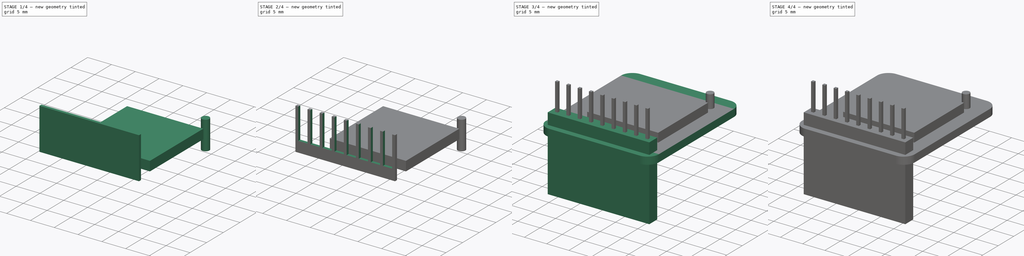
[diagram: build sequence overview — one tinted view per stage of 4, left to right]
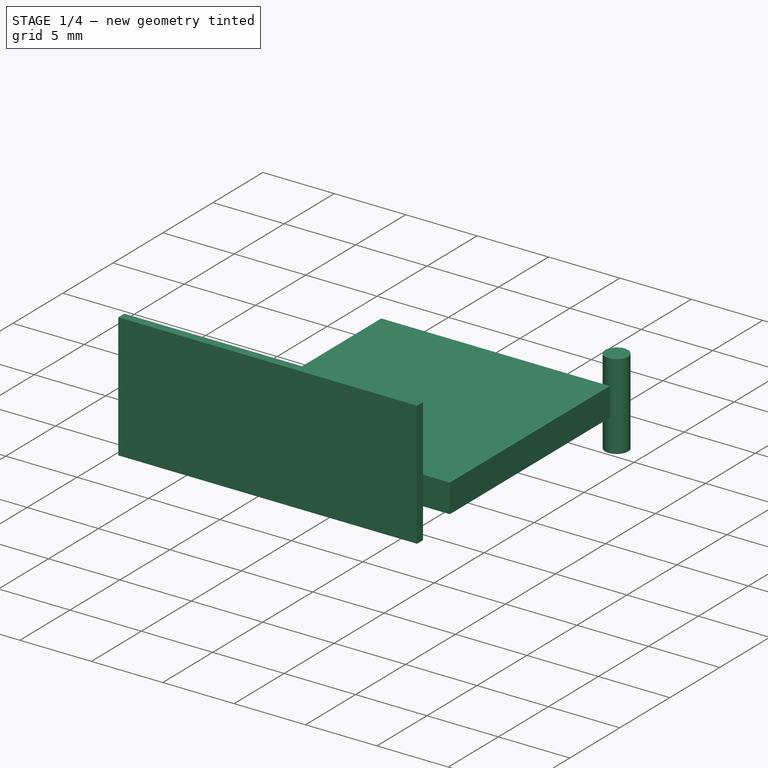
[diagram: stage 1 of 4 — iso view after this stage's code; geometry added in this stage tinted green]
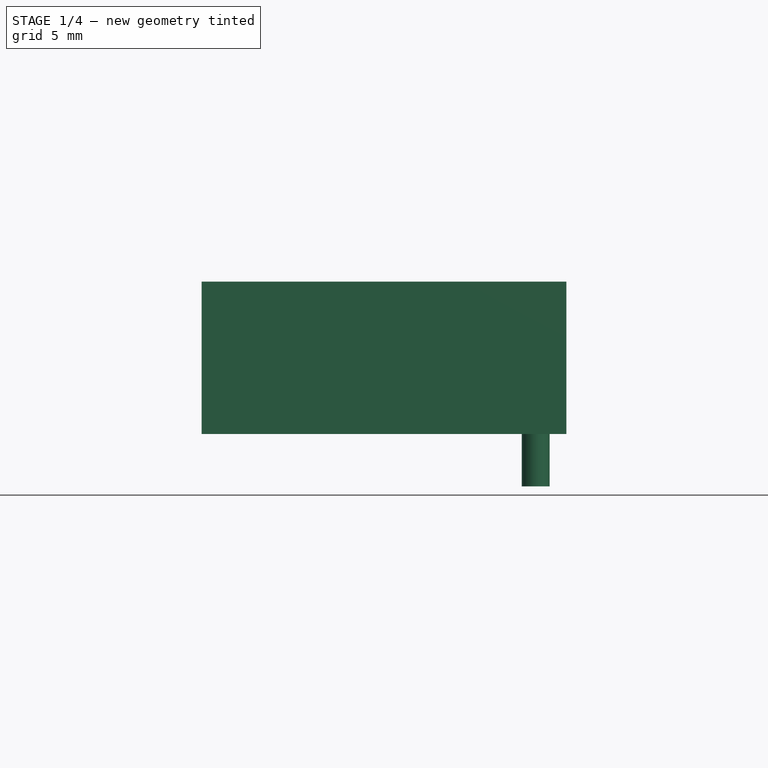
[diagram: stage 1 of 4 — front view after this stage's code; geometry added in this stage tinted green]
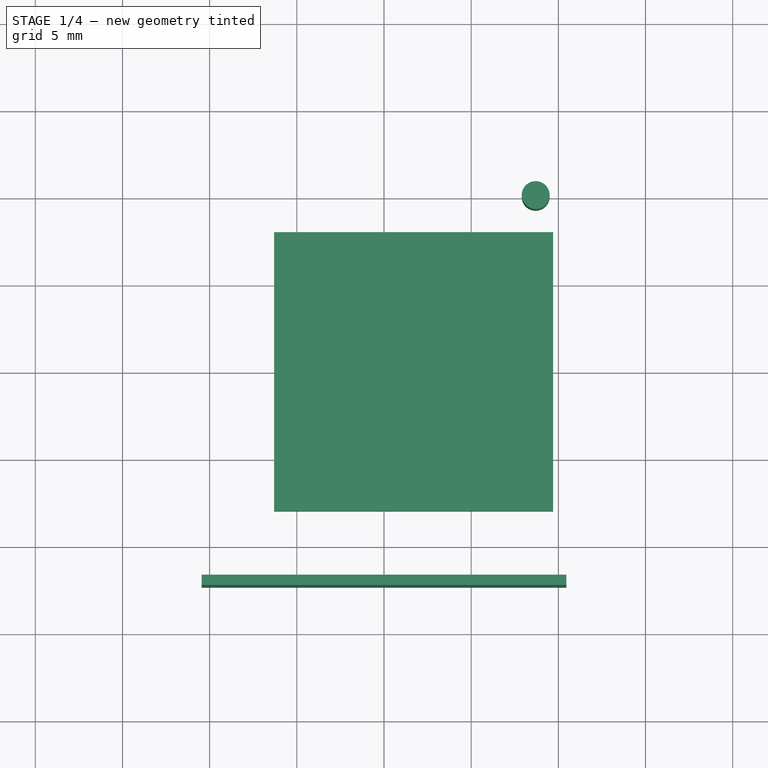
[diagram: stage 1 of 4 — top view after this stage's code; geometry added in this stage tinted green]
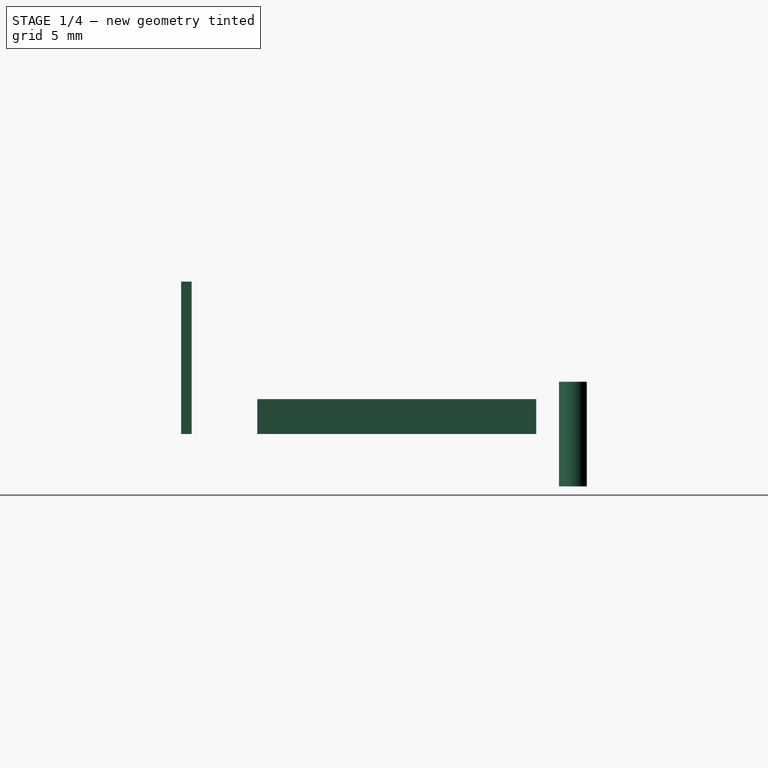
[diagram: stage 1 of 4 — right view after this stage's code; geometry added in this stage tinted green]
FCSTD DOCUMENT  (FreeCAD 0.19R24276 (Git))
Label: Adafruit_RFTrans
License: All rights reserved
LicenseURL: http://en.wikipedia.org/wiki/All_rights_reserved
objects: Sketcher::SketchObject×8, PartDesign::Pad×6, PartDesign::Body×6, PartDesign::LinearPattern×4, PartDesign::Pocket×2, Spreadsheet::Sheet×1, App::Part×1
note: 34 computed .brp shape members not serialized (recipe doc carries the construction recipe); baked Part::Feature solids carry a one-line shape summary decoded from their .brp

FEATURE [PartDesign::Body] Body012  label="PinBlock"
  Group = -> [Sketch014,Pad007]
  Origin = -> Origin016
  Placement = pos=(0,0,-4.2) rot=(0,0,1;0rad)
  Tip = -> Pad007
FEATURE [Sketcher::SketchObject] Sketch016
  FullyConstrained = true
  MapMode = 5
  Support = -> [XY_Plane017]
  expr: Constraints[12] = <<params>>.pin_square_block_dim * (<<params>>.light_num_pins - 1) + <<params>>.pin_width
  expr: Constraints[11] = <<params>>.pin_width
  expr: Constraints[10] = <<params>>.light_width / 2 - <<params>>.light_hole_edge_offset
  sketch-geometry (5):
    g0: LineSegment StartX=-10.46 StartY=-11.765 StartZ=0 EndX=10.46 EndY=-11.765 EndZ=0
    g1: LineSegment StartX=10.46 StartY=-11.765 StartZ=0 EndX=10.46 EndY=-12.365 EndZ=0
    g2: LineSegment StartX=10.46 StartY=-12.365 StartZ=0 EndX=-10.46 EndY=-12.365 EndZ=0
    g3: LineSegment StartX=-10.46 StartY=-12.365 StartZ=0 EndX=-10.46 EndY=-11.765 EndZ=0
    g4: GeomPoint X=0 Y=-12.065 Z=0
  constraints (13):
    c: Coincident(g0,g1)
    c: Coincident(g1,g2)
    c: Coincident(g2,g3)
    c: Coincident(g3,g0)
    c: Horizontal(g0)
    c: Horizontal(g2)
    c: Vertical(g1)
    c: Vertical(g3)
    c: PointOnObject(g4,g-2)
    c: Symmetric(g2,g0,g4)
    c: DistanceY(g4,g-1) = 12.065
    c: DistanceY(g1,g1) = 0.6
    c: DistanceX(g2,g2) = 20.92
FEATURE [PartDesign::Pad] Pad008  label="Pad_PinPLate"
  Direction = (1,1,1)
  Length = 8.74
  Length2 = 100
  Profile = -> Sketch016
  Type = 0
  expr: Length = <<params>>.pin_square_block_dim + <<params>>.pin_leng
FEATURE [PartDesign::Body] Body013  label="Pins"
  Group = -> [Sketch016,Pad008,Sketch017,Pocket005,LinearPattern,LinearPattern006]
  Origin = -> Origin017
  Placement = pos=(0,-24.1,-1.6) rot=(1,0,0;3.14159rad)
  Tip = -> LinearPattern006
FEATURE [Sketcher::SketchObject] Sketch
  FullyConstrained = true
  MapMode = 5
  Support = -> [XY_Plane]
  expr: Constraints[12] = <<params>>.light_leng / 2 - 3mm
  sketch-geometry (5):
    g0: LineSegment StartX=-6.3 StartY=8 StartZ=0 EndX=9.7 EndY=8 EndZ=0
    g1: LineSegment StartX=9.7 StartY=8 StartZ=0 EndX=9.7 EndY=-8 EndZ=0
    g2: LineSegment StartX=9.7 StartY=-8 StartZ=0 EndX=-6.3 EndY=-8 EndZ=0
    g3: LineSegment StartX=-6.3 StartY=-8 StartZ=0 EndX=-6.3 EndY=8 EndZ=0
    g4: GeomPoint X=1.7 Y=0 Z=0
  constraints (13):
    c: Coincident(g0,g1)
    c: Coincident(g1,g2)
    c: Coincident(g2,g3)
    c: Coincident(g3,g0)
    c: Horizontal(g0)
    c: Horizontal(g2)
    c: Vertical(g1)
    c: Vertical(g3)
    c: Distance(g0) = 16
    c: Distance(g1) = 16
    c: PointOnObject(g4,g-1)
    c: Symmetric(g2,g0,g4)
    c: DistanceX(g-1,g1) = 9.7
FEATURE [PartDesign::Pad] Pad
  Direction = (1,1,1)
  Length = 2
  Length2 = 100
  Profile = -> Sketch
  Type = 0
FEATURE [PartDesign::Body] Body  label="RFBoard"
  Group = -> [Sketch,Pad]
  Origin = -> Origin
  Tip = -> Pad
FEATURE [Sketcher::SketchObject] Sketch019
  FullyConstrained = true
  MapMode = 5
  Support = -> [XY_Plane019]
  expr: Constraints[2] = <<params>>.light_width / 2 - 4.5mm
  expr: Constraints[1] = <<params>>.light_leng / 2 - 4mm
  sketch-geometry (1):
    g0: Circle CenterX=8.7 CenterY=10.105 CenterZ=0 NormalX=0 NormalY=0 NormalZ=1 AngleXU=0 Radius=0.8
  constraints (3):
    c: Diameter(g0) = 1.6
    c: DistanceX(g-1,g0) = 8.7
    c: DistanceY(g-1,g0) = 10.105
FEATURE [PartDesign::Pad] Pad010
  Direction = (1,1,1)
  Length = 6
  Length2 = 100
  Midplane = true
  Profile = -> Sketch019
  Type = 0
FEATURE [PartDesign::Body] Body015  label="Antenna"
  Group = -> [Sketch019,Pad010]
  Origin = -> Origin019
  Tip = -> Pad010
FEATURE [App::Part] Part002  label="AdaF_I2CLight_Part"
  Group = -> [Body002,Body012,Body013,Body014,Body,Body015]
  Origin = -> Origin002
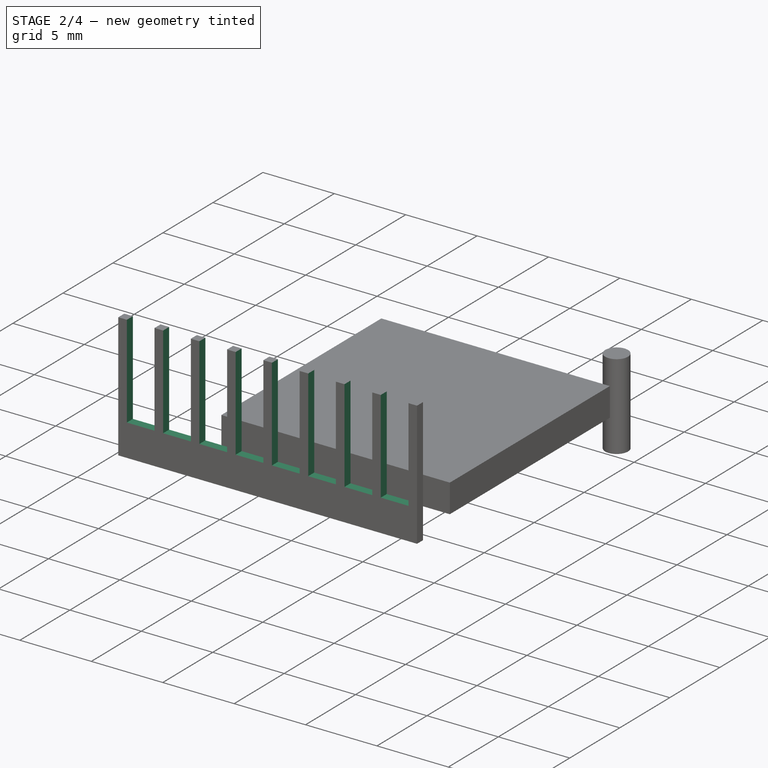
[diagram: stage 2 of 4 — iso view after this stage's code; geometry added in this stage tinted green]
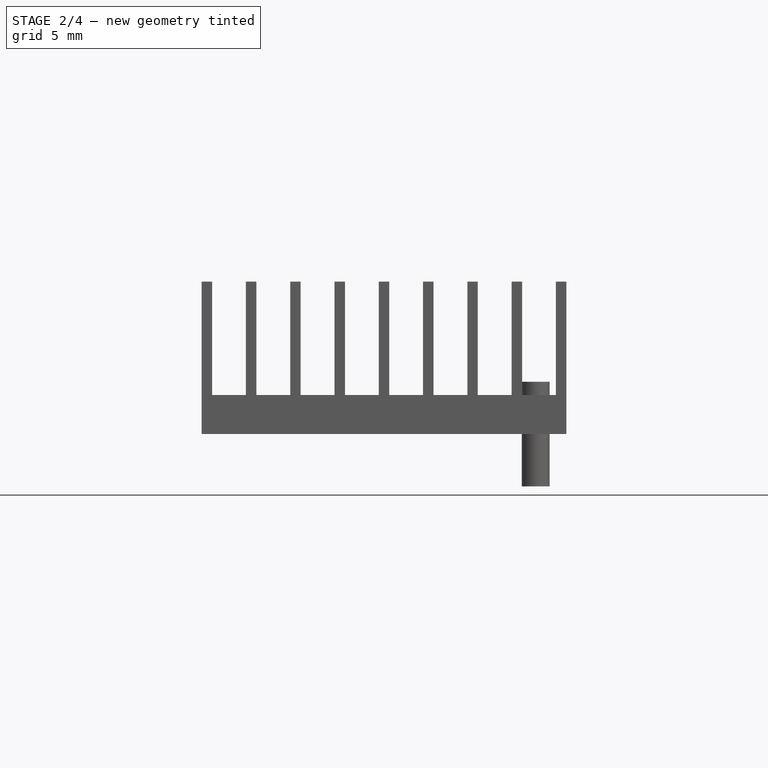
[diagram: stage 2 of 4 — front view after this stage's code; geometry added in this stage tinted green]
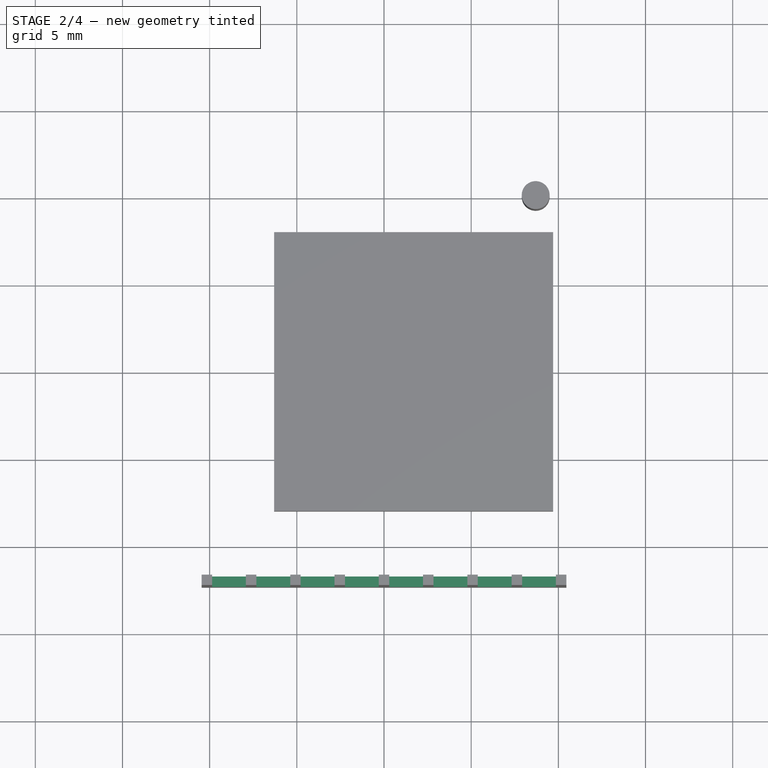
[diagram: stage 2 of 4 — top view after this stage's code; geometry added in this stage tinted green]
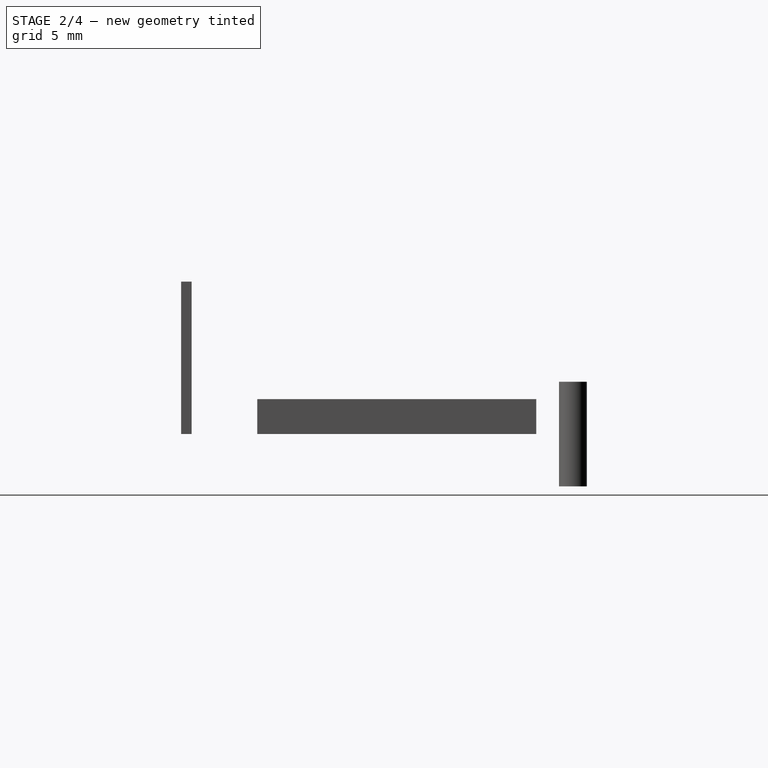
[diagram: stage 2 of 4 — right view after this stage's code; geometry added in this stage tinted green]
FEATURE [Sketcher::SketchObject] Sketch017
  FullyConstrained = true
  MapMode = 5
  Placement = pos=(0,0,0) rot=(1,0,0;1.5708rad)
  Support = -> [XZ_Plane017]
  expr: Constraints[57] = <<params>>.pin_leng * 2
  expr: Constraints[58] = <<params>>.pin_square_block_dim - <<params>>.std_tol
  expr: Constraints[59] = <<params>>.pin_width
  expr: Constraints[61] = <<params>>.pin_spacing
  sketch-geometry (24):
    g0: LineSegment StartX=-2.24 StartY=14.64 StartZ=0 EndX=-0.3 EndY=14.64 EndZ=0
    g1: LineSegment StartX=-0.3 StartY=14.64 StartZ=0 EndX=-0.3 EndY=2.24 EndZ=0
    g2: LineSegment StartX=-0.3 StartY=2.24 StartZ=0 EndX=-2.24 EndY=2.24 EndZ=0
    g3: LineSegment StartX=-2.24 StartY=2.24 StartZ=0 EndX=-2.24 EndY=14.64 EndZ=0
    g4: LineSegment StartX=0.3 StartY=14.64 StartZ=0 EndX=2.24 EndY=14.64 EndZ=0
    g5: LineSegment StartX=2.24 StartY=14.64 StartZ=0 EndX=2.24 EndY=2.24 EndZ=0
    g6: LineSegment StartX=2.24 StartY=2.24 StartZ=0 EndX=0.3 EndY=2.24 EndZ=0
    g7: LineSegment StartX=0.3 StartY=2.24 StartZ=0 EndX=0.3 EndY=14.64 EndZ=0
    g8: LineSegment StartX=2.84 StartY=14.64 StartZ=0 EndX=4.78 EndY=14.64 EndZ=0
    g9: LineSegment StartX=4.78 StartY=14.64 StartZ=0 EndX=4.78 EndY=2.24 EndZ=0
    g10: LineSegment StartX=4.78 StartY=2.24 StartZ=0 EndX=2.84 EndY=2.24 EndZ=0
    g11: LineSegment StartX=2.84 StartY=2.24 StartZ=0 EndX=2.84 EndY=14.64 EndZ=0
    g12: LineSegment StartX=-4.78 StartY=14.64 StartZ=0 EndX=-2.84 EndY=14.64 EndZ=0
    g13: LineSegment StartX=-2.84 StartY=14.64 StartZ=0 EndX=-2.84 EndY=2.24 EndZ=0
    g14: LineSegment StartX=-2.84 StartY=2.24 StartZ=0 EndX=-4.78 EndY=2.24 EndZ=0
    g15: LineSegment StartX=-4.78 StartY=2.24 StartZ=0 EndX=-4.78 EndY=14.64 EndZ=0
    g16: LineSegment StartX=-2.84 StartY=14.64 StartZ=0 EndX=-2.24 EndY=14.64 EndZ=0
    g17: LineSegment StartX=-0.3 StartY=14.64 StartZ=0 EndX=0.3 EndY=14.64 EndZ=0
    g18: LineSegment StartX=2.24 StartY=14.64 StartZ=0 EndX=2.84 EndY=14.64 EndZ=0
    g19: LineSegment StartX=-2.84 StartY=2.24 StartZ=0 EndX=-2.24 EndY=2.24 EndZ=0
    g20: LineSegment StartX=-0.3 StartY=2.24 StartZ=0 EndX=0.3 EndY=2.24 EndZ=0
    g21: LineSegment StartX=2.24 StartY=2.24 StartZ=0 EndX=2.84 EndY=2.24 EndZ=0
    g22: GeomPoint X=0 Y=2.24 Z=0
    g23: GeomPoint X=2.54 Y=2.24 Z=0
  constraints (62):
    c: Coincident(g0,g1)
    c: Coincident(g1,g2)
    c: Coincident(g2,g3)
    c: Coincident(g3,g0)
    c: Horizontal(g0)
    c: Horizontal(g2)
    c: Vertical(g1)
    c: Vertical(g3)
    c: Coincident(g4,g5)
    c: Coincident(g5,g6)
    c: Coincident(g6,g7)
    c: Coincident(g7,g4)
    c: Horizontal(g4)
    c: Horizontal(g6)
    c: Vertical(g5)
    c: Vertical(g7)
    c: Coincident(g8,g9)
    c: Coincident(g9,g10)
    c: Coincident(g10,g11)
    c: Coincident(g11,g8)
    c: Horizontal(g8)
    c: Horizontal(g10)
    c: Vertical(g9)
    c: Vertical(g11)
    c: Coincident(g12,g13)
    c: Coincident(g13,g14)
    c: Coincident(g14,g15)
    c: Coincident(g15,g12)
    c: Horizontal(g12)
    c: Horizontal(g14)
    c: Vertical(g13)
    c: Vertical(g15)
    c: Equal(g12,g0)
    c: Equal(g0,g4)
    c: Equal(g4,g8)
    c: Coincident(g16,g12)
    c: Coincident(g16,g0)
    c: Coincident(g17,g0)
    c: Coincident(g17,g4)
    c: Horizontal(g17)
    c: Coincident(g18,g4)
    c: Coincident(g18,g8)
    c: Horizontal(g18)
    c: Coincident(g19,g13)
    c: Coincident(g19,g2)
    c: Coincident(g20,g1)
    c: Coincident(g20,g6)
    c: Coincident(g21,g5)
    c: Coincident(g21,g10)
    c: Equal(g16,g17)
    c: Equal(g17,g18)
    c: Horizontal(g16)
    c: Horizontal(g19)
    c: Horizontal(g20)
    c: Horizontal(g21)
    c: PointOnObject(g22,g-2)
    c: Symmetric(g1,g6,g22)
    c: DistanceY(g9,g9) = 12.4
    c: DistanceY(g-1,g22) = 2.24
    c: DistanceX(g17,g17) = 0.6
    c: Symmetric(g5,g10,g23)
    c: DistanceX(g22,g23) = 2.54
FEATURE [PartDesign::Pocket] Pocket005  label="Pocket_PinCut"
  BaseFeature = -> Pad008
  Length = 5
  Length2 = 100
  Midplane = true
  Profile = -> Sketch017
  Type = 1
FEATURE [PartDesign::Body] Body014  label="JumperHeader"
  Group = -> [Sketch018,Pad009]
  Origin = -> Origin018
  Placement = pos=(0,0,-4.2) rot=(0,0,1;0rad)
  Tip = -> Pad009
FEATURE [PartDesign::LinearPattern] LinearPattern
  BaseFeature = -> Pocket005
  Direction = -> X_Axis017
  Length = 10.16
  Occurrences = 2
  Originals = -> [Pocket005]
  expr: Length = <<params>>.pin_square_block_dim * (round(<<params>>.light_num_pins / 2) - 1)
FEATURE [PartDesign::LinearPattern] LinearPattern006
  BaseFeature = -> LinearPattern
  Direction = -> X_Axis017
  Length = 10.16
  Occurrences = 2
  Originals = -> [Pocket005]
  Reversed = true
  expr: Length = <<params>>.pin_square_block_dim * (round(<<params>>.light_num_pins / 2) - 1)
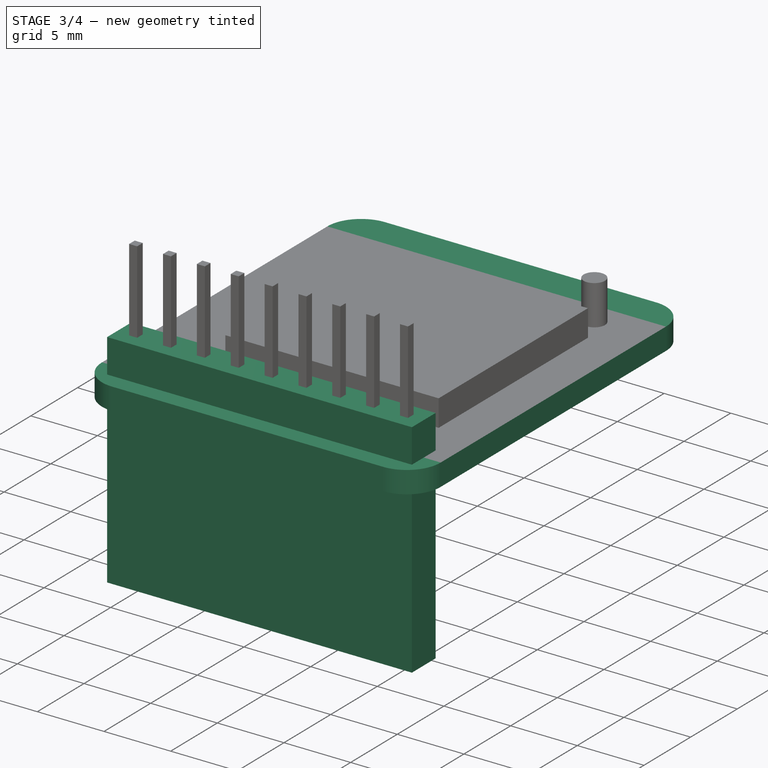
[diagram: stage 3 of 4 — iso view after this stage's code; geometry added in this stage tinted green]
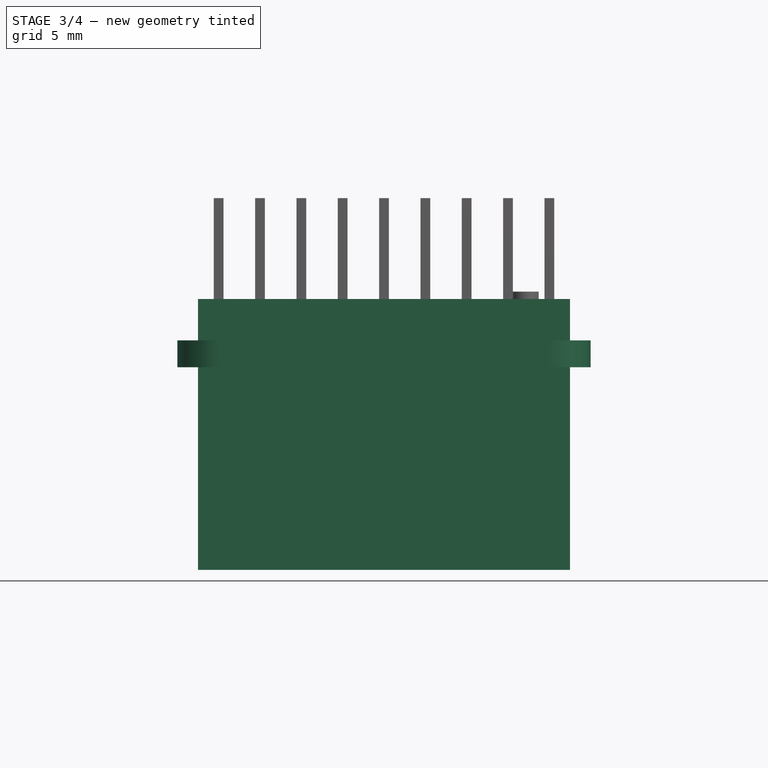
[diagram: stage 3 of 4 — front view after this stage's code; geometry added in this stage tinted green]
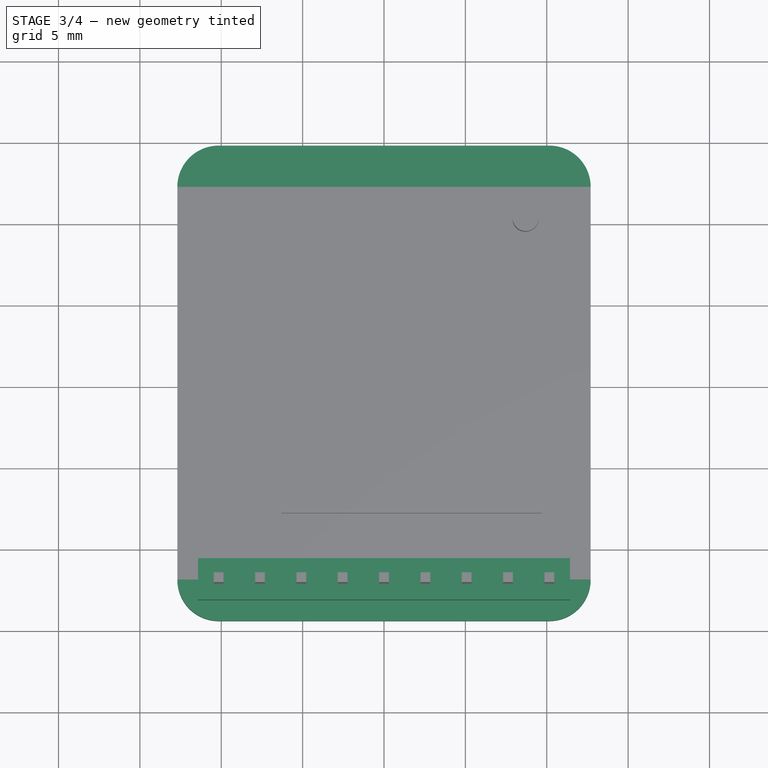
[diagram: stage 3 of 4 — top view after this stage's code; geometry added in this stage tinted green]
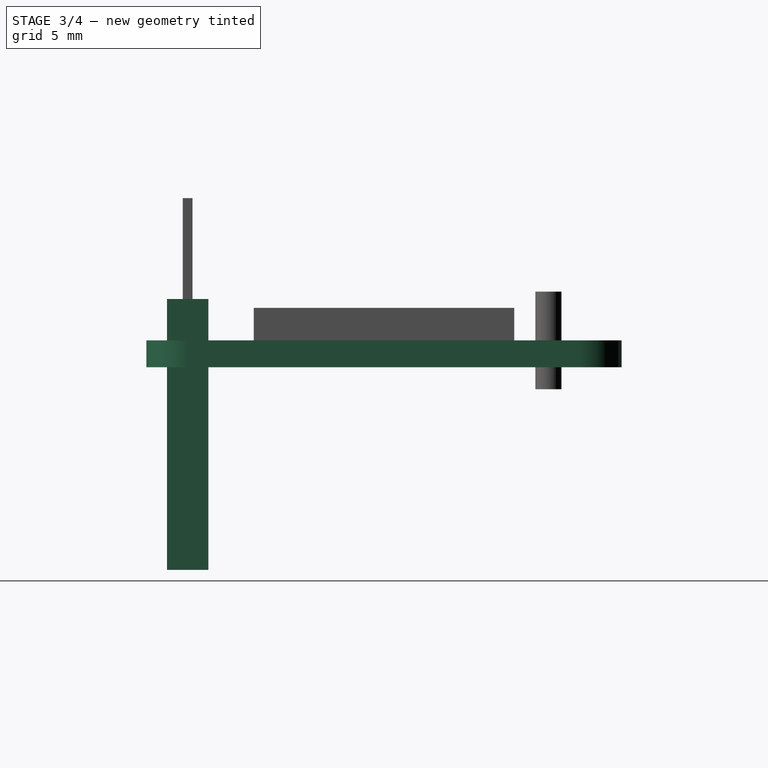
[diagram: stage 3 of 4 — right view after this stage's code; geometry added in this stage tinted green]
FEATURE [Spreadsheet::Sheet] Spreadsheet  label="params"
  cells = A1=Inch to mm; B1(intomm)==25.4mm; E1=std tol; F1(std_tol)==0.3mm; A3=Adafruit Light; B3=Inch; C3=mm; A4=Length; B4=1; C4(light_leng)==B4 * $B$1; A5=Width; B5=1.15; C5(light_width)==B5 * $B$1; A6=Hole Leng Space; B6=0.45; C6(light_hole_leng_space)==B6 * $B$1; A7=Hole Diam; B7=0.1; C7(light_hole_diam)==B7 * $B$1; A8=Hole Edge Offset; B8=0.1; C8(light_hole_edge_offset)==B8 * $B$1; A9=Pin Edge Offset; B9=0.1; C9(light_pin_edge_offset)==B9 * $B$1; A10=Num Pins; B10(light_num_pins)=9; A12=General Parameters; A13=Board Thick; B13(board_thickness)==1.65mm; A15=Pin Hole Diam; B15(pin_hole_diam)==0.8mm; A16=Pin Hole Space; B16(pin_hole_space)==2.54mm; A17=Pin Width; B17(pin_width)==0.6mm; A18=Pin Square Block Dim; B18(pin_square_block_dim)==2.54mm; A19=Pin Leng; B19(pin_leng)==6.2mm; A20=Pin Jumper Leng; B20(pin_jumper_leng)==14.1mm; A21=Pin Spacing; B21(pin_spacing)==2.54mm
FEATURE [Sketcher::SketchObject] Sketch009
  FullyConstrained = true
  MapMode = 5
  Support = -> [XY_Plane006]
  expr: Constraints[16] = <<params>>.light_leng
  expr: Constraints[17] = <<params>>.light_width
  expr: Constraints[18] = <<params>>.light_hole_diam
  sketch-geometry (8):
    g0: LineSegment StartX=-10.16 StartY=14.605 StartZ=0 EndX=10.16 EndY=14.605 EndZ=0
    g1: LineSegment StartX=12.7 StartY=12.065 StartZ=0 EndX=12.7 EndY=-12.065 EndZ=0
    g2: LineSegment StartX=10.16 StartY=-14.605 StartZ=0 EndX=-10.16 EndY=-14.605 EndZ=0
    g3: LineSegment StartX=-12.7 StartY=-12.065 StartZ=0 EndX=-12.7 EndY=12.065 EndZ=0
    g4: ArcOfCircle CenterX=-10.16 CenterY=12.065 CenterZ=0 NormalX=0 NormalY=0 NormalZ=1 AngleXU=0 Radius=2.54 StartAngle=1.5708 EndAngle=3.14159
    g5: ArcOfCircle CenterX=10.16 CenterY=12.065 CenterZ=0 NormalX=0 NormalY=0 NormalZ=1 AngleXU=0 Radius=2.54 StartAngle=-1.048e-13 EndAngle=1.5708
    g6: ArcOfCircle CenterX=10.16 CenterY=-12.065 CenterZ=0 NormalX=0 NormalY=0 NormalZ=1 AngleXU=0 Radius=2.54 StartAngle=4.71239 EndAngle=6.28319
    g7: ArcOfCircle CenterX=-10.16 CenterY=-12.065 CenterZ=0 NormalX=0 NormalY=0 NormalZ=1 AngleXU=0 Radius=2.54 StartAngle=3.14159 EndAngle=4.71239
  constraints (19):
    c: Horizontal(g0)
    c: Horizontal(g2)
    c: Vertical(g1)
    c: Vertical(g3)
    c: Tangent(g3,g4) = 1.5708
    c: Tangent(g0,g4) = 1.5708
    c: Tangent(g0,g5) = 1.5708
    c: Tangent(g1,g5) = 1.5708
    c: Tangent(g1,g6) = 1.5708
    c: Tangent(g2,g6) = 1.5708
    c: Tangent(g2,g7) = 1.5708
    c: Tangent(g3,g7) = 1.5708
    c: Equal(g4,g5)
    c: Equal(g5,g6)
    c: Equal(g6,g7)
    c: Symmetric(g7,g5,g-1)
    c: DistanceX(g3,g1) = 25.4
    c: DistanceY(g2,g0) = 29.21
    c: Radius(g5) = 2.54
FEATURE [PartDesign::Pad] Pad005  label="Pad_MainPlate"
  Direction = (1,1,1)
  Length = 1.65
  Length2 = 100
  Profile = -> Sketch009
  Reversed = true
  Type = 0
  expr: Length = <<params>>.board_thickness
FEATURE [PartDesign::Body] Body002  label="MainBoard"
  Group = -> [Sketch009,Pad005,Sketch013,Pocket004,LinearPattern004,LinearPattern005]
  Origin = -> Origin006
  Tip = -> LinearPattern005
FEATURE [Sketcher::SketchObject] Sketch014
  FullyConstrained = true
  MapMode = 5
  Support = -> [XY_Plane016]
  expr: Constraints[12] = <<params>>.pin_square_block_dim
  expr: Constraints[10] = <<params>>.pin_square_block_dim * <<params>>.light_num_pins
  expr: Constraints[11] = <<params>>.light_width / 2 - <<params>>.light_hole_edge_offset
  sketch-geometry (5):
    g0: LineSegment StartX=-11.43 StartY=-10.795 StartZ=0 EndX=11.43 EndY=-10.795 EndZ=0
    g1: LineSegment StartX=11.43 StartY=-10.795 StartZ=0 EndX=11.43 EndY=-13.335 EndZ=0
    g2: LineSegment StartX=11.43 StartY=-13.335 StartZ=0 EndX=-11.43 EndY=-13.335 EndZ=0
    g3: LineSegment StartX=-11.43 StartY=-13.335 StartZ=0 EndX=-11.43 EndY=-10.795 EndZ=0
    g4: GeomPoint X=-1e-16 Y=-12.065 Z=0
  constraints (13):
    c: Coincident(g0,g1)
    c: Coincident(g1,g2)
    c: Coincident(g2,g3)
    c: Coincident(g3,g0)
    c: Horizontal(g0)
    c: Horizontal(g2)
    c: Vertical(g1)
    c: Vertical(g3)
    c: PointOnObject(g4,g-2)
    c: Symmetric(g2,g0,g4)
    c: DistanceX(g2,g2) = 22.86
    c: DistanceY(g4,g-1) = 12.065
    c: DistanceY(g1,g1) = 2.54
FEATURE [PartDesign::Pad] Pad007  label="Pad_PinBlock"
  Direction = (1,1,1)
  Length = 2.54
  Length2 = 100
  Profile = -> Sketch014
  Type = 0
  expr: Length = <<params>>.pin_square_block_dim
FEATURE [Sketcher::SketchObject] Sketch018
  FullyConstrained = true
  MapMode = 5
  Support = -> [XY_Plane018]
  expr: Constraints[12] = <<params>>.pin_square_block_dim
  expr: Constraints[11] = <<params>>.light_width / 2 - <<params>>.light_hole_edge_offset
  expr: Constraints[10] = <<params>>.pin_square_block_dim * <<params>>.light_num_pins
  sketch-geometry (5):
    g0: LineSegment StartX=-11.43 StartY=-10.795 StartZ=0 EndX=11.43 EndY=-10.795 EndZ=0
    g1: LineSegment StartX=11.43 StartY=-10.795 StartZ=0 EndX=11.43 EndY=-13.335 EndZ=0
    g2: LineSegment StartX=11.43 StartY=-13.335 StartZ=0 EndX=-11.43 EndY=-13.335 EndZ=0
    g3: LineSegment StartX=-11.43 StartY=-13.335 StartZ=0 EndX=-11.43 EndY=-10.795 EndZ=0
    g4: GeomPoint X=2e-16 Y=-12.065 Z=0
  constraints (13):
    c: Coincident(g0,g1)
    c: Coincident(g1,g2)
    c: Coincident(g2,g3)
    c: Coincident(g3,g0)
    c: Horizontal(g0)
    c: Horizontal(g2)
    c: Vertical(g1)
    c: Vertical(g3)
    c: PointOnObject(g4,g-2)
    c: Symmetric(g2,g0,g4)
    c: DistanceX(g2,g2) = 22.86
    c: DistanceY(g4,g-1) = 12.065
    c: DistanceY(g1,g1) = 2.54
FEATURE [PartDesign::Pad] Pad009  label="Pad_JumperHeader"
  Direction = (1,1,1)
  Length = 14.1
  Length2 = 100
  Profile = -> Sketch018
  Reversed = true
  Type = 0
  expr: Length = <<params>>.pin_jumper_leng
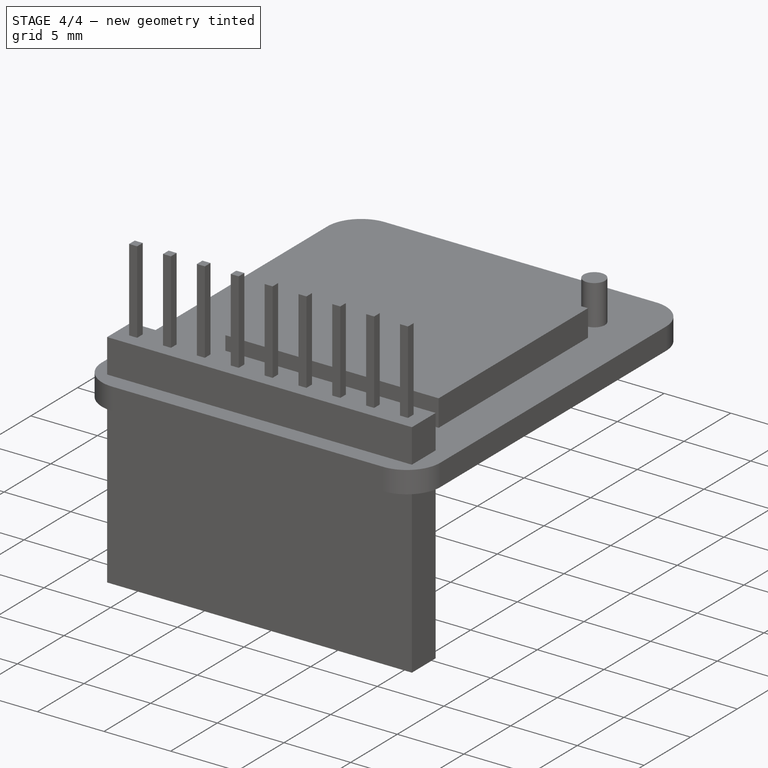
[diagram: stage 4 of 4 — iso view after this stage's code; geometry added in this stage tinted green]
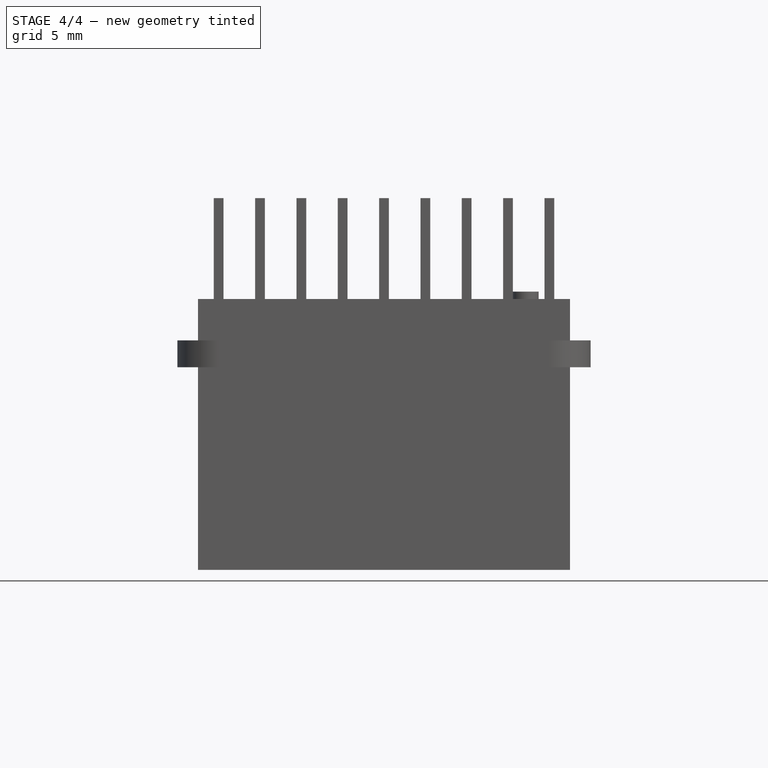
[diagram: stage 4 of 4 — front view after this stage's code; geometry added in this stage tinted green]
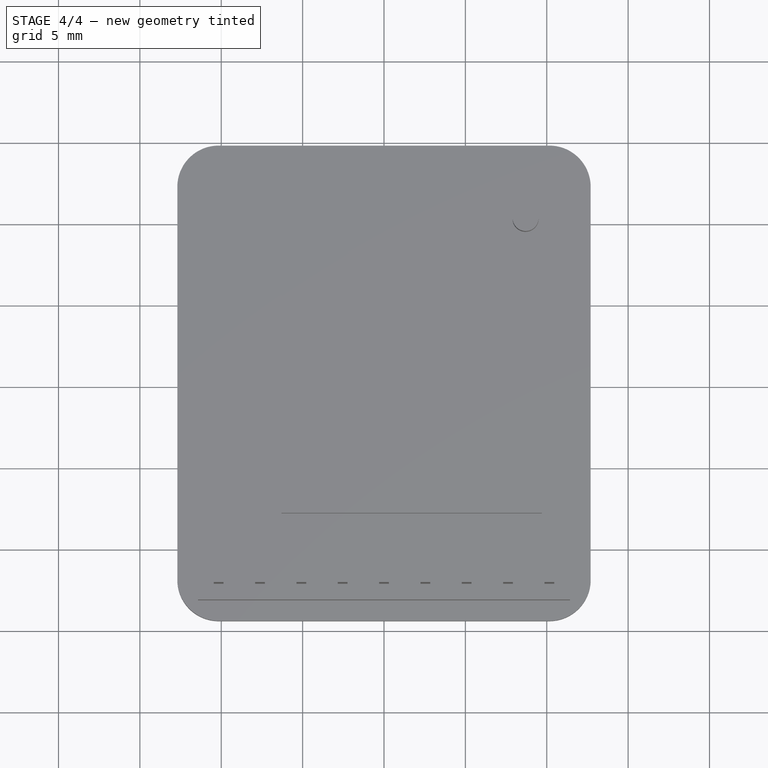
[diagram: stage 4 of 4 — top view after this stage's code; geometry added in this stage tinted green]
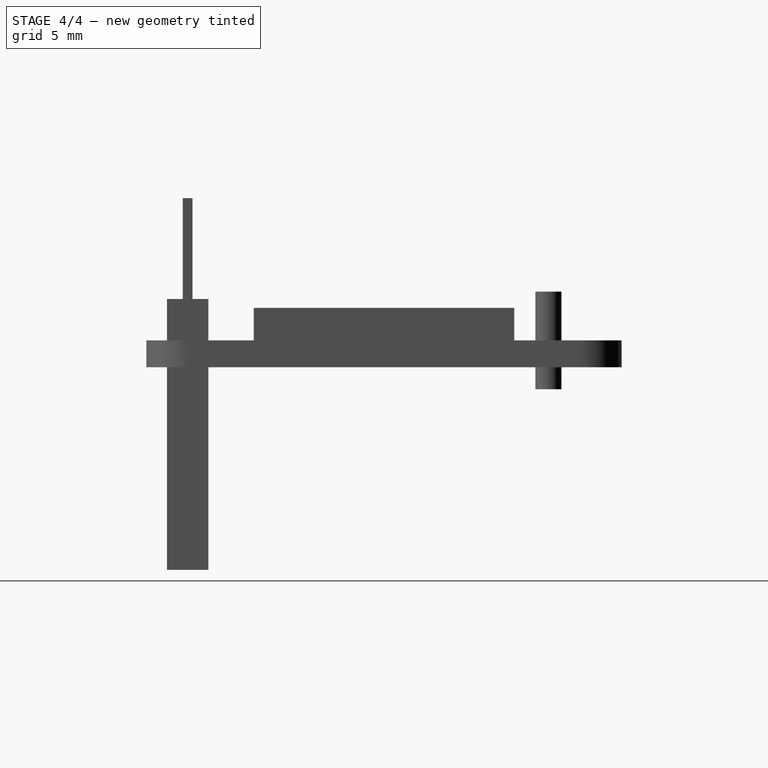
[diagram: stage 4 of 4 — right view after this stage's code; geometry added in this stage tinted green]
FEATURE [Sketcher::SketchObject] Sketch013
  FullyConstrained = true
  MapMode = 5
  Support = -> [XY_Plane006]
  expr: Constraints[2] = <<params>>.pin_hole_diam
  expr: Constraints[1] = <<params>>.light_width / 2 - <<params>>.light_hole_edge_offset
  sketch-geometry (1):
    g0: Circle CenterX=0 CenterY=-12.065 CenterZ=0 NormalX=0 NormalY=0 NormalZ=1 AngleXU=0 Radius=0.4
  constraints (3):
    c: PointOnObject(g0,g-2)
    c: DistanceY(g0,g-1) = 12.065
    c: Diameter(g0) = 0.8
FEATURE [PartDesign::Pocket] Pocket004  label="Pocket_PinHoles"
  BaseFeature = -> Pad005
  Length = 5
  Length2 = 100
  Profile = -> Sketch013
  Type = 1
FEATURE [PartDesign::LinearPattern] LinearPattern004
  BaseFeature = -> Pocket004
  Direction = -> X_Axis006
  Length = 10.16
  Occurrences = 5
  Originals = -> [Pocket004]
  expr: Occurrences = round(<<params>>.light_num_pins / 2)
  expr: Length = <<params>>.pin_hole_space * (round(<<params>>.light_num_pins / 2) - 1)
FEATURE [PartDesign::LinearPattern] LinearPattern005
  BaseFeature = -> LinearPattern004
  Direction = -> X_Axis006
  Length = 10.16
  Occurrences = 5
  Originals = -> [Pocket004]
  Reversed = true
  expr: Occurrences = round(<<params>>.light_num_pins / 2)
  expr: Length = <<params>>.pin_hole_space * (round(<<params>>.light_num_pins / 2) - 1)
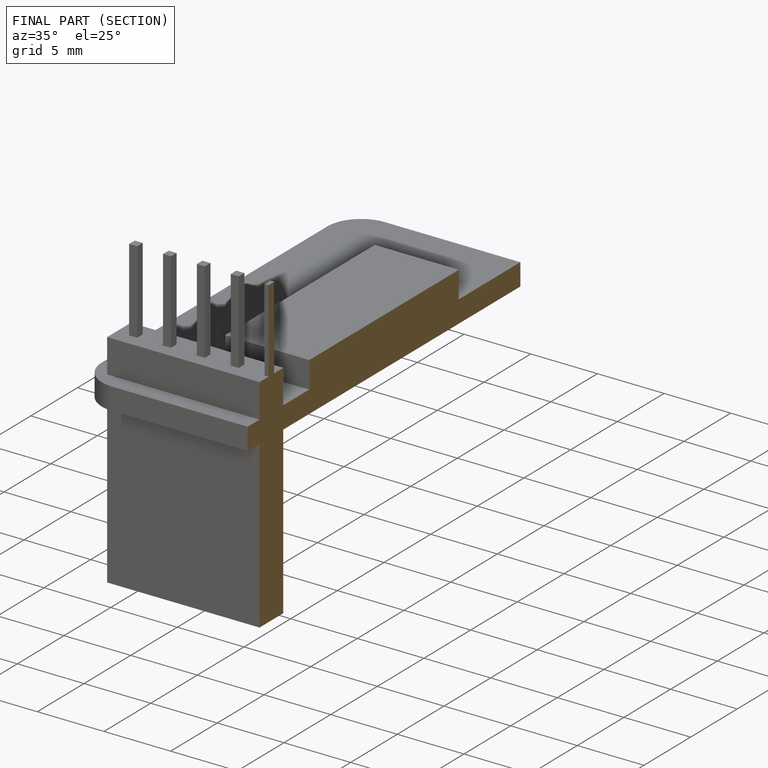
[diagram: finished part — half-section view (interior)]
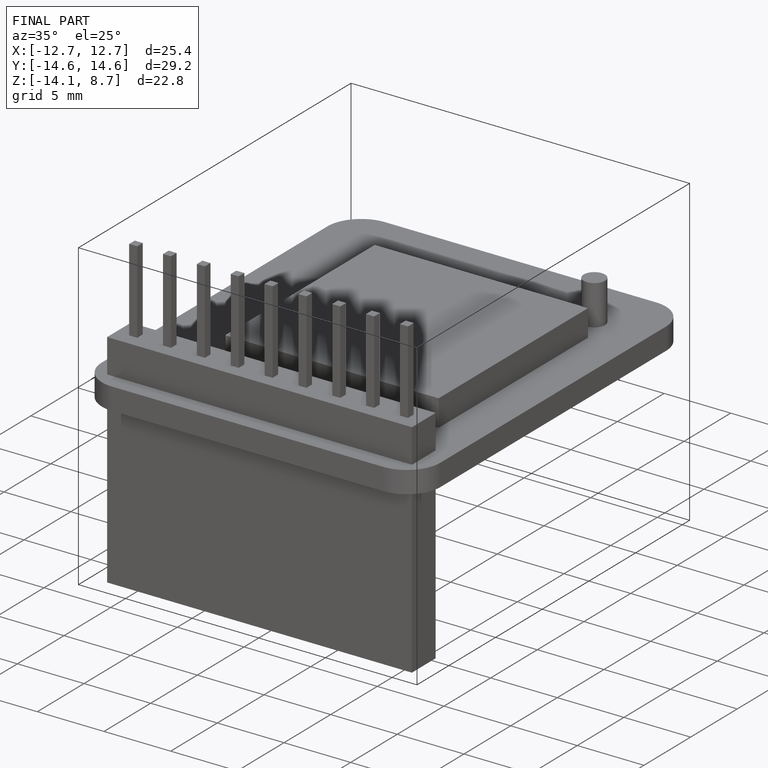
[diagram: finished part — iso view with bounding-box wireframe]
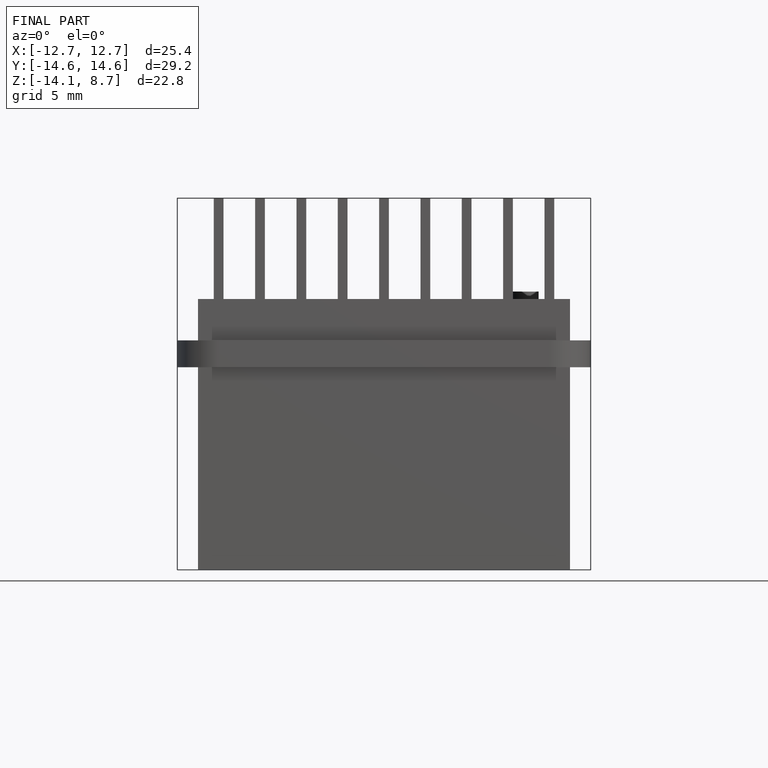
[diagram: finished part — front view with bounding-box wireframe]
